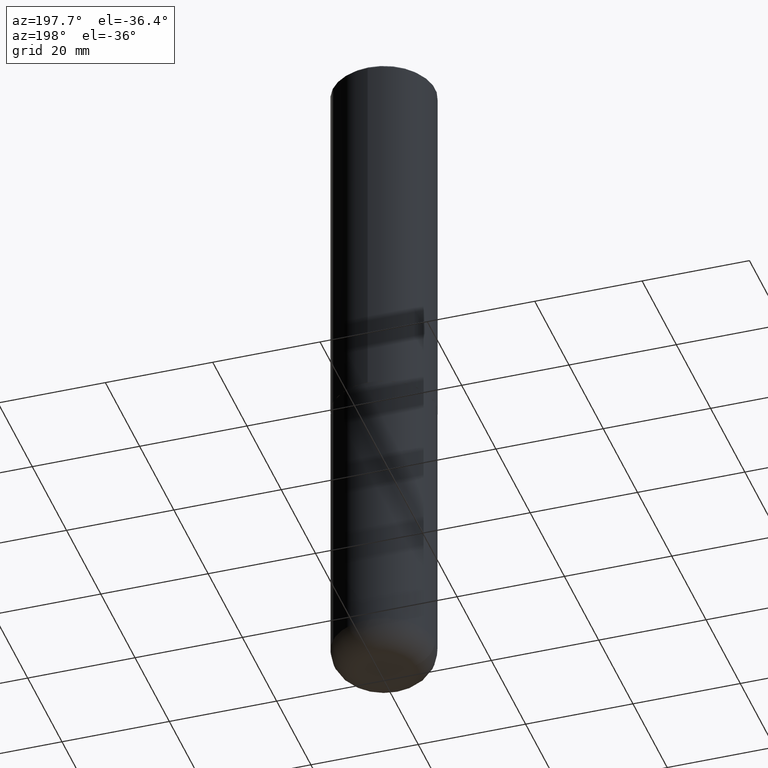
[diagram: clean part render]
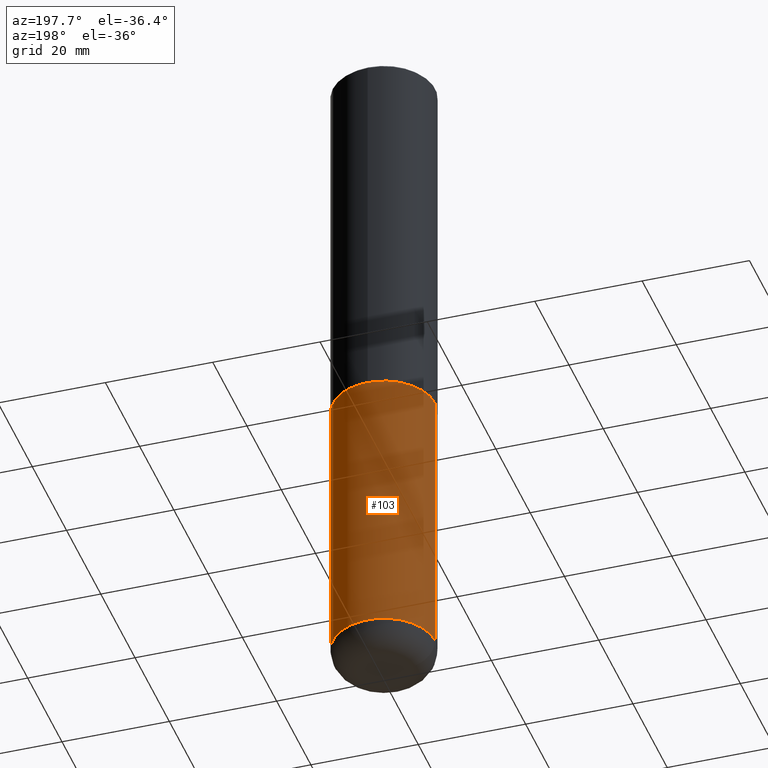
[diagram: same view with one face highlighted and labeled with its STEP entity id]
A machine part, auxiliary view. The second image highlights one B-rep face of the part: STEP entity #103.
In plain terms, the highlighted cylindrical surface (partial cylindrical patch) has radius 9.525 mm, axis along (-0, 0, 1).
Its self-contained STEP definition (entity closure, byte-faithful):
#16 = CARTESIAN_POINT ( 'NONE',  ( -0.3750000000000000555, -1.053326420172671351E-14, -2.750000000000000000 ) ) ;
#52 = VECTOR ( 'NONE', #82, 39.37007874015748143 ) ;
#54 = CARTESIAN_POINT ( 'NONE',  ( -0.3750000000000000555, -1.412948998073515443E-14, -4.810000000000000497 ) ) ;
#56 = AXIS2_PLACEMENT_3D ( 'NONE', #393, #241, #271 ) ;
#81 = CARTESIAN_POINT ( 'NONE',  ( 0.3750000000000000555, -1.941263624396788015E-14, -4.810000000000000497 ) ) ;
#82 = DIRECTION ( 'NONE',  ( -2.445468806185136877E-29, 3.491481338843145188E-15, 1.000000000000000000 ) ) ;
#97 = DIRECTION ( 'NONE',  ( 1.000000000000000000, -6.982962677686266711E-15, 0.000000000000000000 ) ) ;
#103 = ADVANCED_FACE ( 'NONE', ( #391 ), #170, .T. ) ;
#113 = DIRECTION ( 'NONE',  ( -2.445468806185136597E-29, 3.491481338843145583E-15, 1.000000000000000000 ) ) ;
#115 = ORIENTED_EDGE ( 'NONE', *, *, #162, .F. ) ;
#123 = VERTEX_POINT ( 'NONE', #161 ) ;
#134 = CIRCLE ( 'NONE', #355, 0.3750000000000001110 ) ;
#146 = LINE ( 'NONE', #275, #246 ) ;
#161 = CARTESIAN_POINT ( 'NONE',  ( 0.3750000000000000555, -1.222018468595100145E-14, -2.750000000000000000 ) ) ;
#162 = EDGE_CURVE ( 'NONE', #123, #322, #259, .T. ) ;
#170 = CYLINDRICAL_SURFACE ( 'NONE', #56, 0.3750000000000001110 ) ;
#172 = CARTESIAN_POINT ( 'NONE',  ( 6.725039217009124520E-29, -9.601573681818649859E-15, -2.750000000000000000 ) ) ;
#187 = LINE ( 'NONE', #281, #52 ) ;
#210 = EDGE_CURVE ( 'NONE', #351, #322, #187, .T. ) ;
#211 = DIRECTION ( 'NONE',  ( 1.000000000000000000, -6.982962677686265922E-15, 0.000000000000000000 ) ) ;
#228 = VERTEX_POINT ( 'NONE', #81 ) ;
#241 = DIRECTION ( 'NONE',  ( -2.445468806185136597E-29, 3.491481338843145583E-15, 1.000000000000000000 ) ) ;
#246 = VECTOR ( 'NONE', #337, 39.37007874015748143 ) ;
#259 = CIRCLE ( 'NONE', #414, 0.3750000000000000555 ) ;
#267 = DIRECTION ( 'NONE',  ( -2.445468806185136597E-29, 3.491481338843145583E-15, 1.000000000000000000 ) ) ;
#271 = DIRECTION ( 'NONE',  ( 1.000000000000000000, -6.982962677686265922E-15, 4.876176775795935793E-29 ) ) ;
#275 = CARTESIAN_POINT ( 'NONE',  ( 0.3750000000000001110, -2.618611004132350411E-15, 1.828566290923476483E-29 ) ) ;
#281 = CARTESIAN_POINT ( 'NONE',  ( -0.3750000000000001110, 2.664535259100376486E-15, -1.844600658845590159E-29 ) ) ;
#286 = ORIENTED_EDGE ( 'NONE', *, *, #287, .F. ) ;
#287 = EDGE_CURVE ( 'NONE', #228, #123, #146, .T. ) ;
#314 = EDGE_LOOP ( 'NONE', ( #318, #316, #115, #286 ) ) ;
#316 = ORIENTED_EDGE ( 'NONE', *, *, #210, .T. ) ;
#318 = ORIENTED_EDGE ( 'NONE', *, *, #325, .T. ) ;
#322 = VERTEX_POINT ( 'NONE', #16 ) ;
#325 = EDGE_CURVE ( 'NONE', #228, #351, #134, .T. ) ;
#337 = DIRECTION ( 'NONE',  ( -2.445468806185136877E-29, 3.491481338843145188E-15, 1.000000000000000000 ) ) ;
#351 = VERTEX_POINT ( 'NONE', #54 ) ;
#355 = AXIS2_PLACEMENT_3D ( 'NONE', #402, #113, #211 ) ;
#391 = FACE_OUTER_BOUND ( 'NONE', #314, .T. ) ;
#393 = CARTESIAN_POINT ( 'NONE',  ( 0.000000000000000000, 0.000000000000000000, 0.000000000000000000 ) ) ;
#402 = CARTESIAN_POINT ( 'NONE',  ( 1.176270495775050811E-28, -1.679402523983553013E-14, -4.810000000000000497 ) ) ;
#414 = AXIS2_PLACEMENT_3D ( 'NONE', #172, #267, #97 ) ;